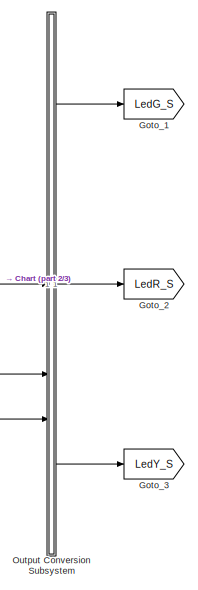
[diagram: root canvas - part 1/3, top right region]
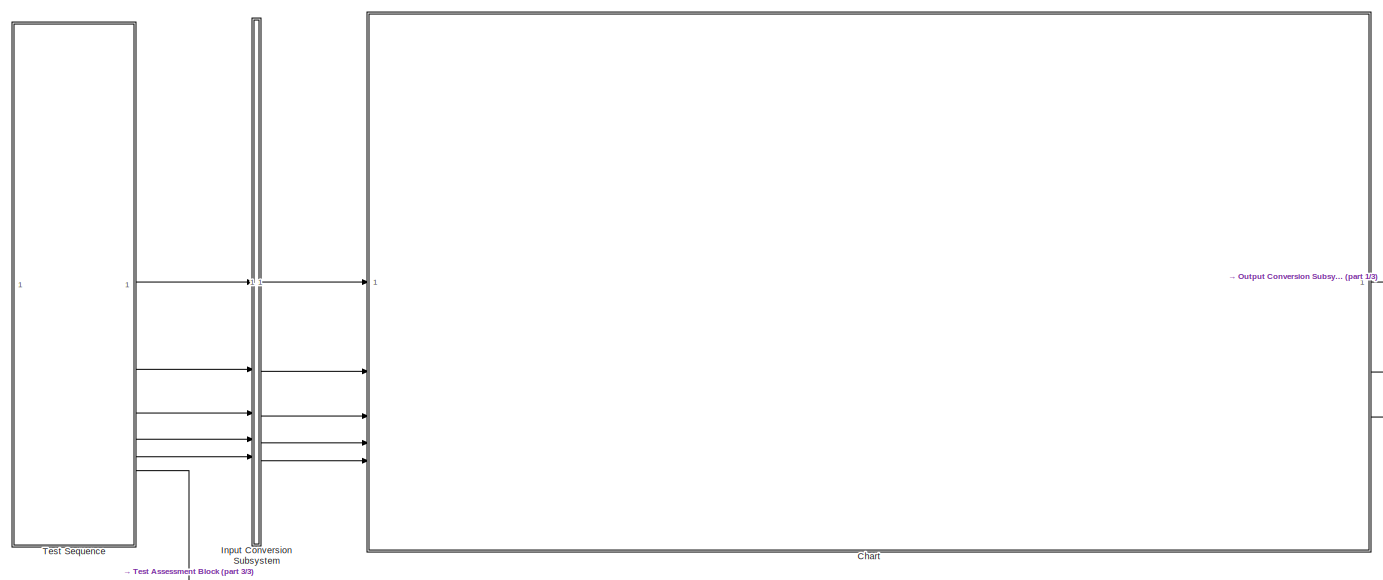
[diagram: root canvas - part 2/3, full width, top band]
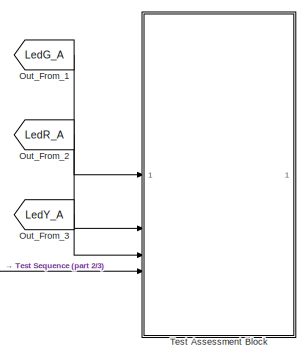
[diagram: root canvas - part 3/3, bottom center region]
MODEL slx_bc0eb7c32e5d
KIND model
CONFIG AbsTol = auto
CONFIG EnableMultiTasking = off
CONFIG FixedStep = 0.5
CONFIG MaxStep = auto
CONFIG MinStep = auto
CONFIG RelTol = 1e-3
CONFIG SampleTimeConstraint = Unconstrained
CONFIG SolverName = FixedStepAuto
CONFIG StartTime = 0.0
CONFIG StopTime = 240
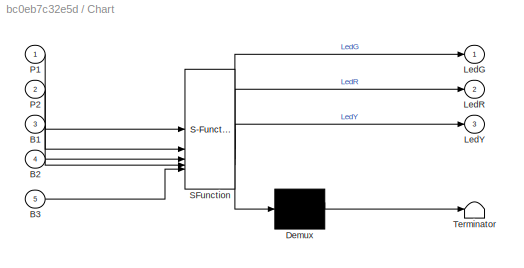
BLOCK [SubSystem] Chart
  ErrorFcn = Stateflow.Translate.translate
  PermitHierarchicalResolution = ExplicitOnly
  SFBlockType = Chart
  TreatAsAtomicUnit = on
BLOCK [Demux] Chart/ Demux 
  Outputs = 1
BLOCK [S-Function] Chart/ SFunction 
  EnableBusSupport = on
  FunctionName = sf_sfun
  PortCounts = [5 4]
  SFcnIsStateOwnerBlock = off
  SFunctionDeploymentMode = off
  Tag = Stateflow S-Function 2
BLOCK [Terminator] Chart/ Terminator 
BLOCK [Inport] Chart/B1
  Port = 3
BLOCK [Inport] Chart/B2
  Port = 4
BLOCK [Inport] Chart/B3
  Port = 5
BLOCK [Outport] Chart/LedG
BLOCK [Outport] Chart/LedR
  Port = 2
BLOCK [Outport] Chart/LedY
  Port = 3
BLOCK [Inport] Chart/P1
BLOCK [Inport] Chart/P2
  Port = 2
BLOCK [Goto] Goto_1
  GotoTag = LedG_S
BLOCK [Goto] Goto_2
  GotoTag = LedR_S
BLOCK [Goto] Goto_3
  GotoTag = LedY_S
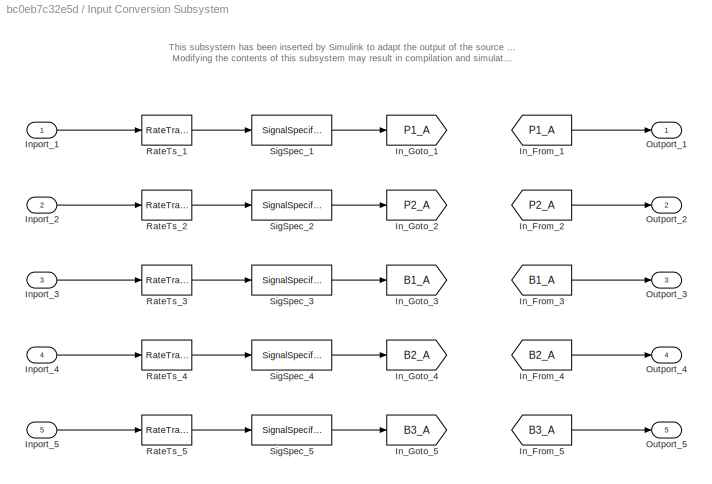
BLOCK [SubSystem] Input Conversion Subsystem
  AttributesFormatString = %<Description>
  Description = Signal spec.\nand routing
  Permissions = ReadOnly
  PermitHierarchicalResolution = ExplicitOnly
  Tag = __SLT_ICS__
  TreatAsGroupedWhenPropagatingVariantConditions = off
  UserDataPersistent = on
BLOCK [From] Input Conversion Subsystem/In_From_1
  GotoTag = P1_A
  TagVisibility = global
BLOCK [From] Input Conversion Subsystem/In_From_2
  GotoTag = P2_A
  TagVisibility = global
BLOCK [From] Input Conversion Subsystem/In_From_3
  GotoTag = B1_A
  TagVisibility = global
BLOCK [From] Input Conversion Subsystem/In_From_4
  GotoTag = B2_A
  TagVisibility = global
BLOCK [From] Input Conversion Subsystem/In_From_5
  GotoTag = B3_A
  TagVisibility = global
BLOCK [Goto] Input Conversion Subsystem/In_Goto_1
  GotoTag = P1_A
  TagVisibility = global
BLOCK [Goto] Input Conversion Subsystem/In_Goto_2
  GotoTag = P2_A
  TagVisibility = global
BLOCK [Goto] Input Conversion Subsystem/In_Goto_3
  GotoTag = B1_A
  TagVisibility = global
BLOCK [Goto] Input Conversion Subsystem/In_Goto_4
  GotoTag = B2_A
  TagVisibility = global
BLOCK [Goto] Input Conversion Subsystem/In_Goto_5
  GotoTag = B3_A
  TagVisibility = global
BLOCK [Inport] Input Conversion Subsystem/Inport_1
BLOCK [Inport] Input Conversion Subsystem/Inport_2
  Port = 2
BLOCK [Inport] Input Conversion Subsystem/Inport_3
  Port = 3
BLOCK [Inport] Input Conversion Subsystem/Inport_4
  Port = 4
BLOCK [Inport] Input Conversion Subsystem/Inport_5
  Port = 5
BLOCK [Outport] Input Conversion Subsystem/Outport_1
BLOCK [Outport] Input Conversion Subsystem/Outport_2
  Port = 2
BLOCK [Outport] Input Conversion Subsystem/Outport_3
  Port = 3
BLOCK [Outport] Input Conversion Subsystem/Outport_4
  Port = 4
BLOCK [Outport] Input Conversion Subsystem/Outport_5
  Port = 5
BLOCK [RateTransition] Input Conversion Subsystem/RateTs_1
  OutPortSampleTime = [-1, 0]
BLOCK [RateTransition] Input Conversion Subsystem/RateTs_2
  OutPortSampleTime = [-1, 0]
BLOCK [RateTransition] Input Conversion Subsystem/RateTs_3
  OutPortSampleTime = [-1, 0]
BLOCK [RateTransition] Input Conversion Subsystem/RateTs_4
  OutPortSampleTime = [-1, 0]
BLOCK [RateTransition] Input Conversion Subsystem/RateTs_5
  OutPortSampleTime = [-1, 0]
BLOCK [SignalSpecification] Input Conversion Subsystem/SigSpec_1
  Dimensions = [1]
  OutDataTypeStr = double
  SampleTime = [-1, 0]
  SignalType = real
  VarSizeSig = No
BLOCK [SignalSpecification] Input Conversion Subsystem/SigSpec_2
  Dimensions = [1]
  OutDataTypeStr = double
  SampleTime = [-1, 0]
  SignalType = real
  VarSizeSig = No
BLOCK [SignalSpecification] Input Conversion Subsystem/SigSpec_3
  Dimensions = [1]
  OutDataTypeStr = double
  SampleTime = [-1, 0]
  SignalType = real
  VarSizeSig = No
BLOCK [SignalSpecification] Input Conversion Subsystem/SigSpec_4
  Dimensions = [1]
  OutDataTypeStr = double
  SampleTime = [-1, 0]
  SignalType = real
  VarSizeSig = No
BLOCK [SignalSpecification] Input Conversion Subsystem/SigSpec_5
  Dimensions = [1]
  OutDataTypeStr = double
  SampleTime = [-1, 0]
  SignalType = real
  VarSizeSig = No
BLOCK [From] Out_From_1
  GotoTag = LedG_A
  TagVisibility = global
BLOCK [From] Out_From_2
  GotoTag = LedR_A
  TagVisibility = global
BLOCK [From] Out_From_3
  GotoTag = LedY_A
  TagVisibility = global
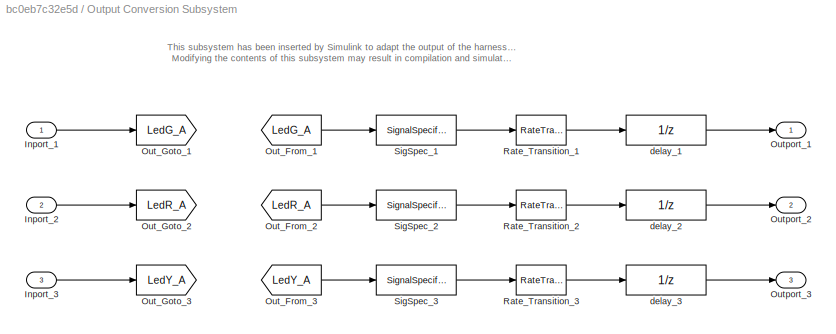
BLOCK [SubSystem] Output Conversion Subsystem
  AttributesFormatString = %<Description>
  Description = Signal spec.\nand routing
  Permissions = ReadOnly
  PermitHierarchicalResolution = ExplicitOnly
  Tag = __SLT_OCS__
  TreatAsGroupedWhenPropagatingVariantConditions = off
  UserDataPersistent = on
BLOCK [Inport] Output Conversion Subsystem/Inport_1
BLOCK [Inport] Output Conversion Subsystem/Inport_2
  Port = 2
BLOCK [Inport] Output Conversion Subsystem/Inport_3
  Port = 3
BLOCK [From] Output Conversion Subsystem/Out_From_1
  GotoTag = LedG_A
  TagVisibility = global
BLOCK [From] Output Conversion Subsystem/Out_From_2
  GotoTag = LedR_A
  TagVisibility = global
BLOCK [From] Output Conversion Subsystem/Out_From_3
  GotoTag = LedY_A
  TagVisibility = global
BLOCK [Goto] Output Conversion Subsystem/Out_Goto_1
  GotoTag = LedG_A
  TagVisibility = global
BLOCK [Goto] Output Conversion Subsystem/Out_Goto_2
  GotoTag = LedR_A
  TagVisibility = global
BLOCK [Goto] Output Conversion Subsystem/Out_Goto_3
  GotoTag = LedY_A
  TagVisibility = global
BLOCK [Outport] Output Conversion Subsystem/Outport_1
BLOCK [Outport] Output Conversion Subsystem/Outport_2
  Port = 2
BLOCK [Outport] Output Conversion Subsystem/Outport_3
  Port = 3
BLOCK [RateTransition] Output Conversion Subsystem/Rate_Transition_1
  OutPortSampleTimeOpt = Inherit
BLOCK [RateTransition] Output Conversion Subsystem/Rate_Transition_2
  OutPortSampleTimeOpt = Inherit
BLOCK [RateTransition] Output Conversion Subsystem/Rate_Transition_3
  OutPortSampleTimeOpt = Inherit
BLOCK [SignalSpecification] Output Conversion Subsystem/SigSpec_1
  Dimensions = [1]
  OutDataTypeStr = double
  SampleTime = 0.5
  SignalType = real
  VarSizeSig = No
BLOCK [SignalSpecification] Output Conversion Subsystem/SigSpec_2
  Dimensions = [1]
  OutDataTypeStr = double
  SampleTime = 0.5
  SignalType = real
  VarSizeSig = No
BLOCK [SignalSpecification] Output Conversion Subsystem/SigSpec_3
  Dimensions = [1]
  OutDataTypeStr = double
  SampleTime = 0.5
  SignalType = real
  VarSizeSig = No
BLOCK [UnitDelay] Output Conversion Subsystem/delay_1
  SampleTime = -1
BLOCK [UnitDelay] Output Conversion Subsystem/delay_2
  SampleTime = -1
BLOCK [UnitDelay] Output Conversion Subsystem/delay_3
  SampleTime = -1
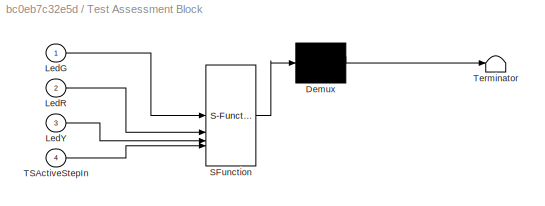
BLOCK [SubSystem] Test Assessment Block
  ErrorFcn = Stateflow.Translate.translate
  PermitHierarchicalResolution = ExplicitOnly
  SFBlockType = Test Sequence
  ShowPortLabels = none
  Tag = __SLT_ASMT__
  TreatAsAtomicUnit = on
BLOCK [Demux] Test Assessment Block/ Demux 
  Outputs = 1
BLOCK [S-Function] Test Assessment Block/ SFunction 
  EnableBusSupport = on
  FunctionName = sf_sfun
  PortCounts = [4 1]
  SFcnIsStateOwnerBlock = off
  SFunctionDeploymentMode = off
  Tag = Stateflow S-Function 1
BLOCK [Terminator] Test Assessment Block/ Terminator 
BLOCK [Inport] Test Assessment Block/LedG
BLOCK [Inport] Test Assessment Block/LedR
  Port = 2
BLOCK [Inport] Test Assessment Block/LedY
  Port = 3
BLOCK [Inport] Test Assessment Block/TSActiveStepIn
  Port = 4
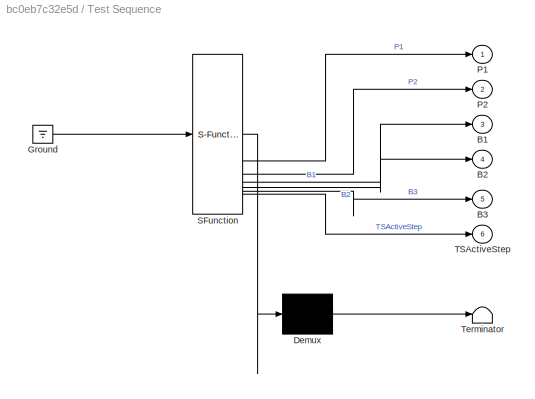
BLOCK [SubSystem] Test Sequence
  ErrorFcn = Stateflow.Translate.translate
  PermitHierarchicalResolution = ExplicitOnly
  SFBlockType = Test Sequence
  ShowPortLabels = none
  TreatAsAtomicUnit = on
BLOCK [Demux] Test Sequence/ Demux 
  Outputs = 1
BLOCK [Ground] Test Sequence/ Ground 
BLOCK [S-Function] Test Sequence/ SFunction 
  EnableBusSupport = on
  FunctionName = sf_sfun
  PortCounts = [1 7]
  SFcnIsStateOwnerBlock = off
  SFunctionDeploymentMode = off
  Tag = Stateflow S-Function 4
BLOCK [Terminator] Test Sequence/ Terminator 
BLOCK [Outport] Test Sequence/B1
  Port = 3
BLOCK [Outport] Test Sequence/B2
  Port = 4
BLOCK [Outport] Test Sequence/B3
  Port = 5
BLOCK [Outport] Test Sequence/P1
BLOCK [Outport] Test Sequence/P2
  Port = 2
BLOCK [Outport] Test Sequence/TSActiveStep
  Port = 6
ANNOTATION Input Conversion Subsystem: This subsystem has been inserted by Simulink to adapt the output of the source blocks to the interface required by the harnessed component. Modifying the contents of this subsystem may result in compilation and simulation failure.
ANNOTATION Output Conversion Subsystem: This subsystem has been inserted by Simulink to adapt the output of the harnessed component to the interface required by the sink blocks. Modifying the contents of this subsystem may result in compilation and simulation failure.
LINE Chart:1 -> Output Conversion Subsystem:1
LINE Chart:2 -> Output Conversion Subsystem:2
LINE Chart:3 -> Output Conversion Subsystem:3
LINE Input Conversion Subsystem/In_From_1:1 -> Input Conversion Subsystem/Outport_1:1
LINE Input Conversion Subsystem/In_From_2:1 -> Input Conversion Subsystem/Outport_2:1
LINE Input Conversion Subsystem/In_From_3:1 -> Input Conversion Subsystem/Outport_3:1
LINE Input Conversion Subsystem/In_From_4:1 -> Input Conversion Subsystem/Outport_4:1
LINE Input Conversion Subsystem/In_From_5:1 -> Input Conversion Subsystem/Outport_5:1
LINE Input Conversion Subsystem/Inport_1:1 -> Input Conversion Subsystem/RateTs_1:1
LINE Input Conversion Subsystem/Inport_2:1 -> Input Conversion Subsystem/RateTs_2:1
LINE Input Conversion Subsystem/Inport_3:1 -> Input Conversion Subsystem/RateTs_3:1
LINE Input Conversion Subsystem/Inport_4:1 -> Input Conversion Subsystem/RateTs_4:1
LINE Input Conversion Subsystem/Inport_5:1 -> Input Conversion Subsystem/RateTs_5:1
LINE Input Conversion Subsystem/RateTs_1:1 -> Input Conversion Subsystem/SigSpec_1:1
LINE Input Conversion Subsystem/RateTs_2:1 -> Input Conversion Subsystem/SigSpec_2:1
LINE Input Conversion Subsystem/RateTs_3:1 -> Input Conversion Subsystem/SigSpec_3:1
LINE Input Conversion Subsystem/RateTs_4:1 -> Input Conversion Subsystem/SigSpec_4:1
LINE Input Conversion Subsystem/RateTs_5:1 -> Input Conversion Subsystem/SigSpec_5:1
LINE Input Conversion Subsystem/SigSpec_1:1 -> Input Conversion Subsystem/In_Goto_1:1
LINE Input Conversion Subsystem/SigSpec_2:1 -> Input Conversion Subsystem/In_Goto_2:1
LINE Input Conversion Subsystem/SigSpec_3:1 -> Input Conversion Subsystem/In_Goto_3:1
LINE Input Conversion Subsystem/SigSpec_4:1 -> Input Conversion Subsystem/In_Goto_4:1
LINE Input Conversion Subsystem/SigSpec_5:1 -> Input Conversion Subsystem/In_Goto_5:1
LINE Input Conversion Subsystem:1 -> Chart:1
LINE Input Conversion Subsystem:2 -> Chart:2
LINE Input Conversion Subsystem:3 -> Chart:3
LINE Input Conversion Subsystem:4 -> Chart:4
LINE Input Conversion Subsystem:5 -> Chart:5
LINE Out_From_1:1 -> Test Assessment Block:1
LINE Out_From_2:1 -> Test Assessment Block:2
LINE Out_From_3:1 -> Test Assessment Block:3
LINE Output Conversion Subsystem/Inport_1:1 -> Output Conversion Subsystem/Out_Goto_1:1
LINE Output Conversion Subsystem/Inport_2:1 -> Output Conversion Subsystem/Out_Goto_2:1
LINE Output Conversion Subsystem/Inport_3:1 -> Output Conversion Subsystem/Out_Goto_3:1
LINE Output Conversion Subsystem/Out_From_1:1 -> Output Conversion Subsystem/SigSpec_1:1
LINE Output Conversion Subsystem/Out_From_2:1 -> Output Conversion Subsystem/SigSpec_2:1
LINE Output Conversion Subsystem/Out_From_3:1 -> Output Conversion Subsystem/SigSpec_3:1
LINE Output Conversion Subsystem/Rate_Transition_1:1 -> Output Conversion Subsystem/delay_1:1
LINE Output Conversion Subsystem/Rate_Transition_2:1 -> Output Conversion Subsystem/delay_2:1
LINE Output Conversion Subsystem/Rate_Transition_3:1 -> Output Conversion Subsystem/delay_3:1
LINE Output Conversion Subsystem/SigSpec_1:1 -> Output Conversion Subsystem/Rate_Transition_1:1
LINE Output Conversion Subsystem/SigSpec_2:1 -> Output Conversion Subsystem/Rate_Transition_2:1
LINE Output Conversion Subsystem/SigSpec_3:1 -> Output Conversion Subsystem/Rate_Transition_3:1
LINE Output Conversion Subsystem/delay_1:1 -> Output Conversion Subsystem/Outport_1:1
LINE Output Conversion Subsystem/delay_2:1 -> Output Conversion Subsystem/Outport_2:1
LINE Output Conversion Subsystem/delay_3:1 -> Output Conversion Subsystem/Outport_3:1
LINE Output Conversion Subsystem:1 -> Goto_1:1
LINE Output Conversion Subsystem:2 -> Goto_2:1
LINE Output Conversion Subsystem:3 -> Goto_3:1
LINE Test Sequence:1 -> Input Conversion Subsystem:1
LINE Test Sequence:2 -> Input Conversion Subsystem:2
LINE Test Sequence:3 -> Input Conversion Subsystem:3
LINE Test Sequence:4 -> Input Conversion Subsystem:4
LINE Test Sequence:5 -> Input Conversion Subsystem:5
LINE Test Sequence:6 -> Test Assessment Block:4
CHART Test Assessment Block states=18 transitions=55
  STATE_LABEL 'Run\n\n'
  STATE_LABEL 'VerifyInit\nverify(~LedG & ~LedR & ~LedY)'
  STATE_LABEL 'VerifyGateClose\nverify(~LedG & ~LedR & ~LedY)'
  STATE_LABEL 'VerifyGateOpening\nverify(~LedG & ~LedR & ~LedY)'
  STATE_LABEL 'VerifyGateOpening2'
  STATE_LABEL 'VerifyGateOpening2_1\nverify(~LedG & ~LedR & ~LedY)'
  STATE_LABEL 'VerifyGateOpening2_2\nverify(~LedG & ~LedR & LedY)'
  STATE_LABEL '[\nafter(2, sec)\n]'
  STATE_LABEL '[\nafter(2, sec)\n]'
  STATE_LABEL 'VerifyGateOpen\nverify(LedG & LedR & LedY)'
  STATE_LABEL 'VerifyGateOpenObstacle\nverify(LedG & LedR & LedY)'
  STATE_LABEL 'VerifyGateOpenObstacle1'
  STATE_LABEL 'VerifyGateOpenObstacle1_1\nverify(~LedG & LedR & LedY)'
  STATE_LABEL 'VerifyGateOpenObstacle1_2\nverify(LedG & LedR & LedY)'
  STATE_LABEL '[\nafter(1, sec)\n]'
  STATE_LABEL '[\nafter(1, sec)\n]'
  STATE_LABEL 'VerifyGateOpenWithoutObstacle\nverify(LedG & LedR & LedY)'
  STATE_LABEL 'VerifyGateClosing'
  STATE_LABEL 'VerifyGateClosing_1\nverify(~LedG & ~LedR & ~LedY)'
  STATE_LABEL 'VerifyGateClosing_2\nverify(~LedG & ~LedR & LedY)'
  STATE_LABEL '[\nafter(2, sec)\n]'
  STATE_LABEL '[\nafter(2, sec)\n]'
  STATE_LABEL 'VerifyGateOpenClosed\nverify(~LedG & ~LedR & ~LedY)'
  STATE_LABEL 'step_1_2'
  STATE_LABEL '[TSActiveStepIn == TSActiveStepEnumH3.Init\n]'
  STATE_LABEL '[~in(Run.VerifyInit)]'
  STATE_LABEL '[TSActiveStepIn == TSActiveStepEnumH3.GateClose\n]'
  STATE_LABEL '[~in(Run.VerifyGateClose)]'
  STATE_LABEL '[TSActiveStepIn == TSActiveStepEnumH3.GateOpening\n]'
  STATE_LABEL '[~in(Run.VerifyGateOpening)]'
  STATE_LABEL '[TSActiveStepIn == TSActiveStepEnumH3.GateOpening2\n]'
  STATE_LABEL '[~in(Run.VerifyGateOpening2)]'
  STATE_LABEL '[TSActiveStepIn == TSActiveStepEnumH3.GateOpen\n]'
  STATE_LABEL '[~in(Run.VerifyGateOpen)]'
  STATE_LABEL '[TSActiveStepIn == TSActiveStepEnumH3.GateOpenObstacle\n]'
  STATE_LABEL '[~in(Run.VerifyGateOpenObstacle)]'
  STATE_LABEL '[TSActiveStepIn == TSActiveStepEnumH3.GateOpenObstacle1\n]'
  STATE_LABEL '[~in(Run.VerifyGateOpenObstacle1)]'
  STATE_LABEL '[TSActiveStepIn == TSActiveStepEnumH3.GateOpenWithoutObstacle\n]'
  STATE_LABEL '[~in(Run.VerifyGateOpenWithoutObstacle)]'
CHART Chart states=43 transitions=51
  STATE_LABEL 'LOGIC'
  STATE_LABEL 'Cancello'
  STATE_LABEL 'Inattivo\nen: LedG = OFF; LedR = OFF; LedY = OFF;\nex: Var_Inattivo = OFF;'
  STATE_LABEL 'Apertura'
  STATE_LABEL 'In_Apertura\nex: LedY: OFF;'
  STATE_LABEL 'Blink_AOff\nen: LedY = OFF;'
  STATE_LABEL 'Blink_AOn\nen: LedY = ON;\nex: LedY = OFF;'
  STATE_LABEL '[after(BlinkPeriod, sec)]'
  STATE_LABEL '[after(BlinkPeriod, sec)]'
  STATE_LABEL 'Aperto\nen: LedG = ON; LedR = ON; LedY = ON; Var_Aperto = ON;\nex: LedG = OFF; LedR = OFF; LedY = OFF; Var_Aperto = OFF;'
  STATE_LABEL 'Aperto_con_ostacolo\nen: LedG = ON; LedR = ON; LedY = ON; Var_Aperto = ON;'
  STATE_LABEL '{Var_Aperto = OFF;}'
  STATE_LABEL '[after(TL, sec)]'
  STATE_LABEL '[P1 == ON]'
  STATE_LABEL '[P1 == OFF]'
  STATE_LABEL 'Chiusura'
  STATE_LABEL 'In_Chiusura\nVar_In_Chiusura = OFF;'
  STATE_LABEL 'Blink_COff\nen:\nLedY = OFF;'
  STATE_LABEL 'Blink_COn\nen: LedY = ON;\nex: LedY = OFF;'
  STATE_LABEL '[after(BlinkPeriod, sec)]'
  STATE_LABEL '[after(BlinkPeriod, sec)]'
  STATE_LABEL 'Chiuso\nen: LedG = OFF; LedR = OFF;\n LedY = OFF; Var_Chiuso = ON;\nex: Var_Chiuso = OFF;'
  STATE_LABEL 'Errore'
  STATE_LABEL 'In_Errore'
  STATE_LABEL 'Blink_EOff\nen:\nLedY = OFF;'
  STATE_LABEL 'Blink_EOn\nen: LedY = ON;\nex: LedY = OFF;'
  STATE_LABEL '[after(BlinkPeriod, sec)]'
  STATE_LABEL '[[after(BlinkPeriod, sec)]]'
  STATE_LABEL 'LED_Rosso_Errore\nen: LedR =  ON;\nex: LedR = OFF;'
  STATE_LABEL '[after(ErrDur, sec)]'
  STATE_LABEL '{Var_In_Chiusura = ON;\nVar_Chiuso = OFF;}'
  STATE_LABEL '[P2 == ON && P1 == OFF]'
  STATE_LABEL '[P2 == ON]'
  STATE_LABEL '[after(TL, sec) && P2 == OFF]'
  STATE_LABEL '{Var_Inattivo = ON;\nVar_Aperto = OFF; \nVar_Chiuso = OFF;}'
  STATE_LABEL '[(P1==OFF && P2 == OFF) ||  (P1 == ON && P2 == OFF) || (P1 == OFF && P2 == ON)]'
  STATE_LABEL '[P1 == ON]'
  STATE_LABEL '[(buttonpressed1 && P1 == OFF)]'
  STATE_LABEL '[after(TC, sec) && P1 == OFF]'
  STATE_LABEL '[buttonpressed1 && P1 == OFF]'
CHART Test Sequence states=10 transitions=10
  STATE_LABEL 'Init\n\n%% Initialize data outputs.\nP1 = 0;\nP2 = 0;\nB1 = 0;\nB2 = 0;\nB3 = 0;'
  STATE_LABEL 'GateClose\nP1 = 0;\nP2 = 1;\nB1 = 0;\nB2 = 0;\nB3 = 0;'
  STATE_LABEL 'GateOpening\nP1 = 0;\nP2 = 0;\nB1 = 1;\nB2 = 0;\nB3 = 0;'
  STATE_LABEL 'GateOpening2\nP1 = 0;\nP2 = 0;\nB1 = 0;\nB2 = 0;\nB3 = 0;'
  STATE_LABEL 'GateOpen\nP1 = 0;\nP2 = 0;\nB1 = 0;\nB2 = 0;\nB3 = 0;'
  STATE_LABEL 'GateOpenObstacle\nP1 = 1;\nP2 = 0;\nB1 = 1;\nB2 = 0;\nB3 = 0;'
  STATE_LABEL 'GateOpenObstacle1\nP1 = 1;\nP2 = 0;\nB1 = 0;\nB2 = 0;\nB3 = 0;'
  STATE_LABEL 'GateOpenWithoutObstacle\nP1 = 0;\nP2 = 0;\nB1 = 1;\nB2 = 0;\nB3 = 0;'
  STATE_LABEL 'GateClosing\nP1 = 0;\nP2 = 0;\nB1 = 0;\nB2 = 0;\nB3 = 0;'
  STATE_LABEL 'GateClosed\nP1 = 0;\nP2 = 1;\nB1 = 0;\nB2 = 0;\nB3 = 0;'
CHART  states=0 transitions=0
CHART  states=0 transitions=0
CHART  states=0 transitions=0
